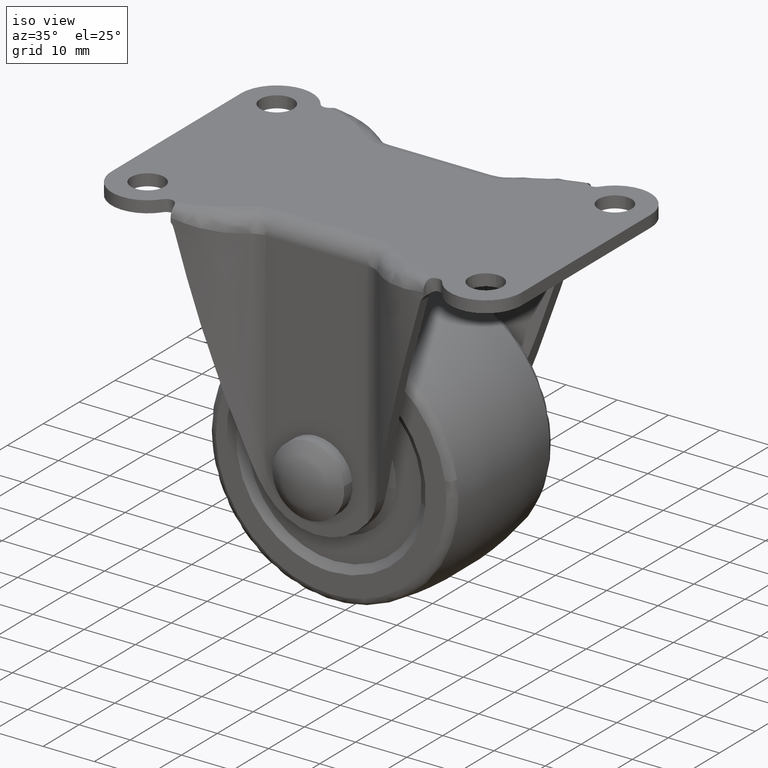
[diagram: clean part render]
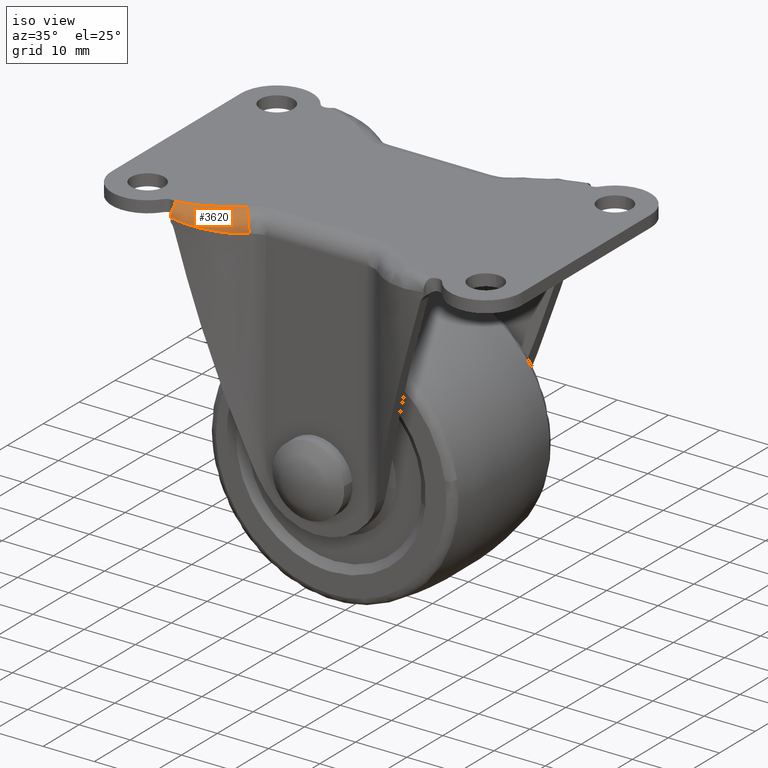
[diagram: same view with one face highlighted and labeled with its STEP entity id]
A machine part, iso view. The second image highlights one B-rep face of the part: STEP entity #3620.
In plain terms, the highlighted face is a freeform B-spline surface patch.
Its self-contained STEP definition (entity closure, byte-faithful):
#3473=CARTESIAN_POINT('',(-14.710354878973760,-16.484444828488201,0.0));
#3474=VERTEX_POINT('',#3473);
#3475=CARTESIAN_POINT('',(-12.548576289977261,-18.977777763618452,-3.300000000000000));
#3476=VERTEX_POINT('',#3475);
#3477=CARTESIAN_POINT('',(-14.710354878973760,-16.484444828488201,0.0));
#3478=CARTESIAN_POINT('',(-12.548575900511002,-18.977778269541819,9.669132E-020));
#3479=CARTESIAN_POINT('',(-12.548576289977261,-18.977777763618452,-3.300000000000000));
#3487=(BOUNDED_CURVE()B_SPLINE_CURVE(2,(#3477,#3478,#3479),.UNSPECIFIED.,.F.,.U.)CURVE()GEOMETRIC_REPRESENTATION_ITEM()QUASI_UNIFORM_CURVE()RATIONAL_B_SPLINE_CURVE((1.0,0.707106781186551,1.0))REPRESENTATION_ITEM(''));
#3488=EDGE_CURVE('',#3474,#3476,#3487,.T.);
#3520=CARTESIAN_POINT('',(-25.360976502323130,-21.582906299519177,-1.267062E-015));
#3521=CARTESIAN_POINT('',(-25.361319143657198,-21.590976532969893,-6.346587E-016));
#3522=CARTESIAN_POINT('',(-25.441675299545022,-23.483605567218230,1.476764E-013));
#3523=CARTESIAN_POINT('',(-25.441808705076706,-23.483593866678181,-1.892845793854344));
#3524=CARTESIAN_POINT('',(-25.441809173839189,-23.483593825564636,-1.899496905515663));
#3525=CARTESIAN_POINT('',(-23.382520320936774,-21.336907810261160,-7.422112E-015));
#3526=CARTESIAN_POINT('',(-23.381968820919155,-21.346408012031155,-3.717662E-015));
#3527=CARTESIAN_POINT('',(-23.252631181300693,-23.574392841828914,8.650489E-013));
#3528=CARTESIAN_POINT('',(-23.253021908426714,-23.574358572503975,-2.219214408518583));
#3529=CARTESIAN_POINT('',(-23.253023281369909,-23.574358452087871,-2.227012319409893));
#3530=CARTESIAN_POINT('',(-21.519638897505651,-20.734487545616311,-3.260757E-014));
#3531=CARTESIAN_POINT('',(-21.517637045631130,-20.745271282951268,-1.633281E-014));
#3532=CARTESIAN_POINT('',(-21.048163268569219,-23.274270537109309,3.800421E-012));
#3533=CARTESIAN_POINT('',(-21.048163268534008,-23.274270537188571,-2.548615542693619));
#3534=CARTESIAN_POINT('',(-21.048163268533894,-23.274270537188851,-2.557570908530260));
#3535=CARTESIAN_POINT('',(-17.916071698635367,-18.974604639518851,3.714017E-014));
#3536=CARTESIAN_POINT('',(-17.910442616114668,-18.986726489883296,1.860314E-014));
#3537=CARTESIAN_POINT('',(-16.590311656152920,-21.829539664180789,-4.328695E-012));
#3538=CARTESIAN_POINT('',(-16.590311660033102,-21.829539659634023,-3.108976162488849));
#3539=CARTESIAN_POINT('',(-16.590311660045977,-21.829539659618938,-3.119900532377266));
#3540=CARTESIAN_POINT('',(-16.224132617508079,-17.764257954627453,-5.693952E-014));
#3541=CARTESIAN_POINT('',(-16.216284030248133,-17.776189129161384,-2.852044E-014));
#3542=CARTESIAN_POINT('',(-14.375635637424573,-20.574284723226949,6.636293E-012));
#3543=CARTESIAN_POINT('',(-14.375635221650965,-20.574285205780029,-3.315514676432831));
#3544=CARTESIAN_POINT('',(-14.375635220272166,-20.574285207380111,-3.327164785514381));
#3545=CARTESIAN_POINT('',(-14.685966487351903,-16.425825145690705,1.552553E-015));
#3546=CARTESIAN_POINT('',(-14.676668190778155,-16.436467133386479,7.776585E-016));
#3547=CARTESIAN_POINT('',(-12.496034114705962,-18.932223299317254,-1.809505E-013));
#3548=CARTESIAN_POINT('',(-12.496034114697769,-18.932223299325802,-3.311670744375269));
#3549=CARTESIAN_POINT('',(-12.496034114697748,-18.932223299325834,-3.323307345718005));
#3557=(BOUNDED_SURFACE()B_SPLINE_SURFACE(2,3,((#3520,#3525,#3530,#3535,#3540,#3545),(#3521,#3526,#3531,#3536,#3541,#3546),(#3522,#3527,#3532,#3537,#3542,#3547),(#3523,#3528,#3533,#3538,#3543,#3548),(#3524,#3529,#3534,#3539,#3544,#3549)),.UNSPECIFIED.,.F.,.F.,.U.)B_SPLINE_SURFACE_WITH_KNOTS((3,1,1,3),(4,2,4),(0.0,0.033290312240636,5.500929278133842,5.528315751433718),(0.0,6.644032817511794,14.211615240563679),.UNSPECIFIED.)GEOMETRIC_REPRESENTATION_ITEM()RATIONAL_B_SPLINE_SURFACE(((1.003566624193107,1.003566624193107,1.003566624193107,1.003566624193107,1.003566624193107,1.003566624193107),(1.001783312096554,1.001783312096554,1.001783312096554,1.001783312096554,1.001783312096554,1.001783312096554),(0.707106781186556,0.707106781186556,0.707106781186556,0.707106781186556,0.707106781186556,0.707106781186556),(1.001467052299317,1.001467052299317,1.001467052299317,1.001467052299317,1.001467052299317,1.001467052299317),(1.002934104598634,1.002934104598634,1.002934104598634,1.002934104598634,1.002934104598634,1.002934104598634)))REPRESENTATION_ITEM('')SURFACE());
#3558=CARTESIAN_POINT('',(-24.667639999999999,-23.500000000000000,-2.001148857503020));
#3559=VERTEX_POINT('',#3558);
#3560=CARTESIAN_POINT('',(-24.667639999999999,-22.752841000000000,-0.441980071013704));
#3561=VERTEX_POINT('',#3560);
#3562=CARTESIAN_POINT('',(-24.667639999999999,-23.500000000000000,-2.001148857503020));
#3563=CARTESIAN_POINT('',(-24.667639999999999,-23.499744848792520,-1.547085406176071));
#3564=CARTESIAN_POINT('',(-24.667639999999999,-23.303760039961261,-1.137438880188562));
#3565=CARTESIAN_POINT('',(-24.667639999999999,-23.107660204166621,-0.727551925382515));
#3566=CARTESIAN_POINT('',(-24.667639999999999,-22.752841000000000,-0.441980071013704));
#3567=B_SPLINE_CURVE_WITH_KNOTS('',2,(#3562,#3563,#3564,#3565,#3566),.UNSPECIFIED.,.F.,.U.,(3,2,3),(0.0,0.500000000000000,1.0),.UNSPECIFIED.);
#3568=EDGE_CURVE('',#3559,#3561,#3567,.T.);
#3569=ORIENTED_EDGE('',*,*,#3568,.F.);
#3570=CARTESIAN_POINT('',(-12.548576289977261,-18.977777763618452,-3.300000000000000));
#3571=CARTESIAN_POINT('',(-12.699570646820129,-19.106254253169389,-3.299195524165020));
#3572=CARTESIAN_POINT('',(-13.005310822974900,-19.366397542686421,-3.297566589756583));
#3573=CARTESIAN_POINT('',(-13.485435002049019,-19.741984924501701,-3.284790942791492));
#3574=CARTESIAN_POINT('',(-13.988734263204259,-20.111134705975019,-3.264518141816792));
#3575=CARTESIAN_POINT('',(-14.516711267812910,-20.470847828701888,-3.235951965605543));
#3576=CARTESIAN_POINT('',(-15.069259321573480,-20.819824402050148,-3.199313187057095));
#3577=CARTESIAN_POINT('',(-15.646611408477190,-21.156209032246661,-3.154541365830575));
#3578=CARTESIAN_POINT('',(-16.248788389505972,-21.478219879023051,-3.101649415066499));
#3579=CARTESIAN_POINT('',(-16.875744818502699,-21.783979325755030,-3.040647967366414));
#3580=CARTESIAN_POINT('',(-17.527307487396360,-22.071561732709700,-2.971478596904796));
#3581=CARTESIAN_POINT('',(-18.191509246827291,-22.334367281908239,-2.895707013823196));
#3582=CARTESIAN_POINT('',(-18.887839737443642,-22.579203577143328,-2.810349818765610));
#3583=CARTESIAN_POINT('',(-19.637169431590362,-22.809299446196921,-2.713410714519645));
#3584=CARTESIAN_POINT('',(-20.473594666989669,-23.025844416366791,-2.601124739141999));
#3585=CARTESIAN_POINT('',(-21.398093529626529,-23.217837313213799,-2.473421405011925));
#3586=CARTESIAN_POINT('',(-22.410735051973159,-23.371351086531700,-2.330253625365606));
#3587=CARTESIAN_POINT('',(-23.510449013099262,-23.478734379410920,-2.171864697183085));
#3588=CARTESIAN_POINT('',(-24.272955731903860,-23.492746913869180,-2.059375076855921));
#3589=CARTESIAN_POINT('',(-24.667639999999999,-23.500000000000000,-2.001148857503020));
#3590=B_SPLINE_CURVE_WITH_KNOTS('',3,(#3570,#3571,#3572,#3573,#3574,#3575,#3576,#3577,#3578,#3579,#3580,#3581,#3582,#3583,#3584,#3585,#3586,#3587,#3588,#3589),.UNSPECIFIED.,.F.,.U.,(4,1,1,1,1,1,1,1,1,1,1,1,1,1,1,1,1,4),(0.0,0.044750936049038,0.090613460806567,0.137595138001650,0.185703002823162,0.234943607085361,0.285323059999257,0.336847065007815,0.389520953095532,0.443349712939652,0.498338018230995,0.551631125665395,0.611045163830058,0.676582809746431,0.748245956513013,0.826035951296472,0.909953746577950,1.0),.UNSPECIFIED.);
#3591=EDGE_CURVE('',#3476,#3559,#3590,.T.);
#3592=ORIENTED_EDGE('',*,*,#3591,.F.);
#3593=ORIENTED_EDGE('',*,*,#3488,.F.);
#3594=CARTESIAN_POINT('',(-25.286304371241950,-21.589644077501799,0.0));
#3595=VERTEX_POINT('',#3594);
#3596=CARTESIAN_POINT('',(-25.286304371241950,-21.589644077501799,0.0));
#3597=CARTESIAN_POINT('',(-19.790000768346001,-20.888362660071451,0.0));
#3598=CARTESIAN_POINT('',(-14.710354878973760,-16.484444828488201,0.0));
#3599=QUASI_UNIFORM_CURVE('',2,(#3596,#3597,#3598),.UNSPECIFIED.,.F.,.U.);
#3600=EDGE_CURVE('',#3595,#3474,#3599,.T.);
#3601=ORIENTED_EDGE('',*,*,#3600,.F.);
#3602=CARTESIAN_POINT('',(-24.667639999999999,-22.752841000000000,-0.441980071013704));
#3603=CARTESIAN_POINT('',(-24.668293167285849,-22.719857201479758,-0.416345169820896));
#3604=CARTESIAN_POINT('',(-24.669590217881758,-22.654358428878851,-0.365439736268588));
#3605=CARTESIAN_POINT('',(-24.680910187834680,-22.551604031566381,-0.297197540276977));
#3606=CARTESIAN_POINT('',(-24.699885369719009,-22.447349370438129,-0.235787920090710));
#3607=CARTESIAN_POINT('',(-24.727667924545251,-22.341909053885949,-0.181713700227707));
#3608=CARTESIAN_POINT('',(-24.764602445330869,-22.236187893509189,-0.134878534506725));
#3609=CARTESIAN_POINT('',(-24.817006607835879,-22.117897568212641,-0.090191987869610));
#3610=CARTESIAN_POINT('',(-24.891488143411689,-21.986209061565340,-0.051181464244107));
#3611=CARTESIAN_POINT('',(-24.996534182579062,-21.844592839288779,-0.021517207443812));
#3612=CARTESIAN_POINT('',(-25.127056350561219,-21.706870918675271,-0.003180702865668));
#3613=CARTESIAN_POINT('',(-25.232127122982561,-21.629525437720719,-0.001082096518726));
#3614=CARTESIAN_POINT('',(-25.286304371241950,-21.589644077501799,0.0));
#3615=B_SPLINE_CURVE_WITH_KNOTS('',3,(#3602,#3603,#3604,#3605,#3606,#3607,#3608,#3609,#3610,#3611,#3612,#3613,#3614),.UNSPECIFIED.,.F.,.U.,(4,1,1,1,1,1,1,1,1,1,4),(0.0,0.085164070668968,0.169117638015303,0.252181135937351,0.334685362126046,0.416967852039895,0.499368858069910,0.613432608773941,0.734408179620365,0.863053885902098,1.0),.UNSPECIFIED.);
#3616=EDGE_CURVE('',#3561,#3595,#3615,.T.);
#3617=ORIENTED_EDGE('',*,*,#3616,.F.);
#3618=EDGE_LOOP('',(#3569,#3592,#3593,#3601,#3617));
#3619=FACE_OUTER_BOUND('',#3618,.T.);
#3620=ADVANCED_FACE('',(#3619),#3557,.T.);